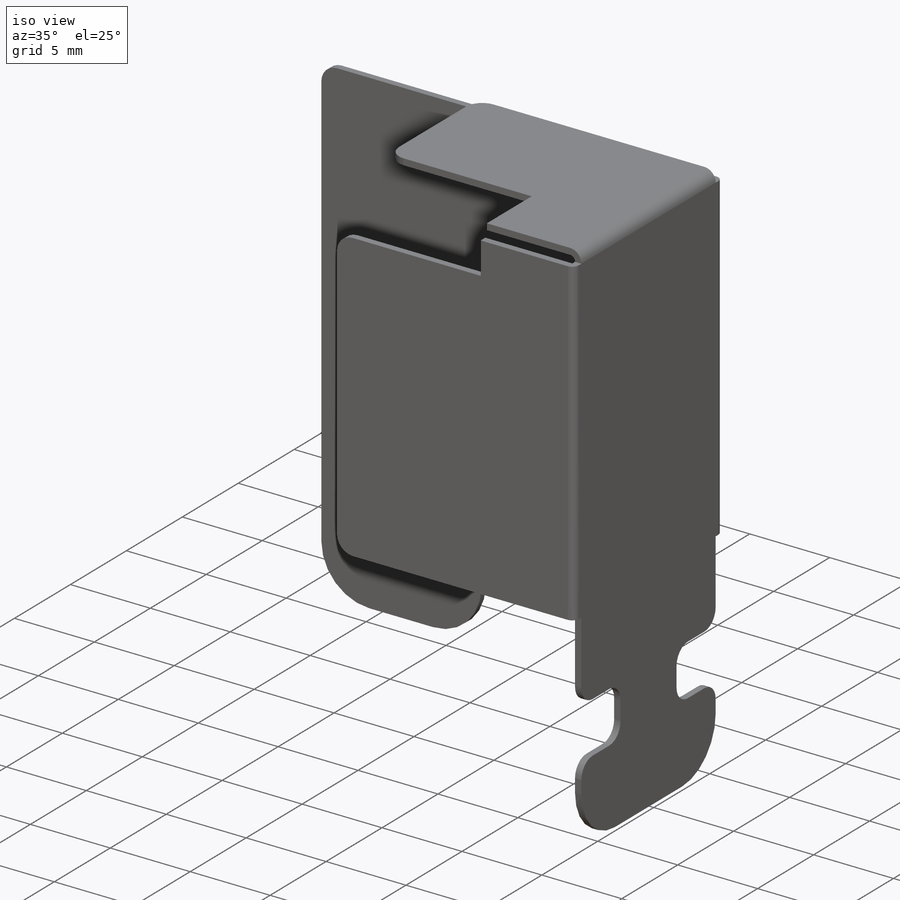
[diagram: iso view]
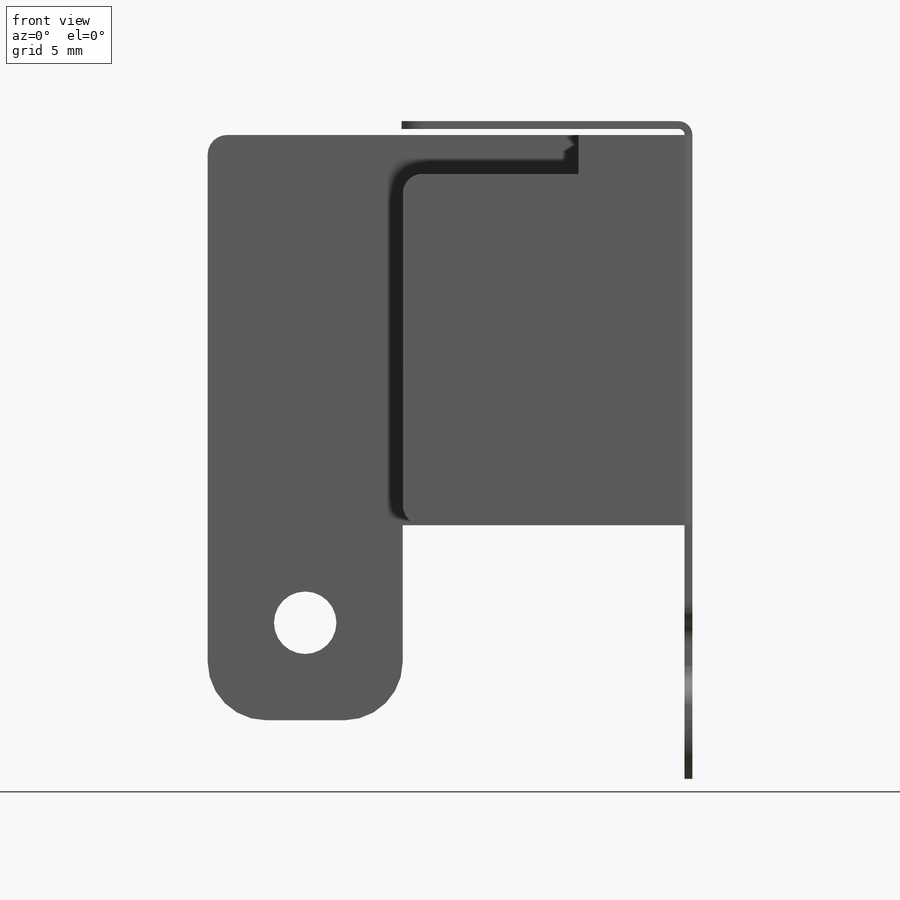
[diagram: front view]
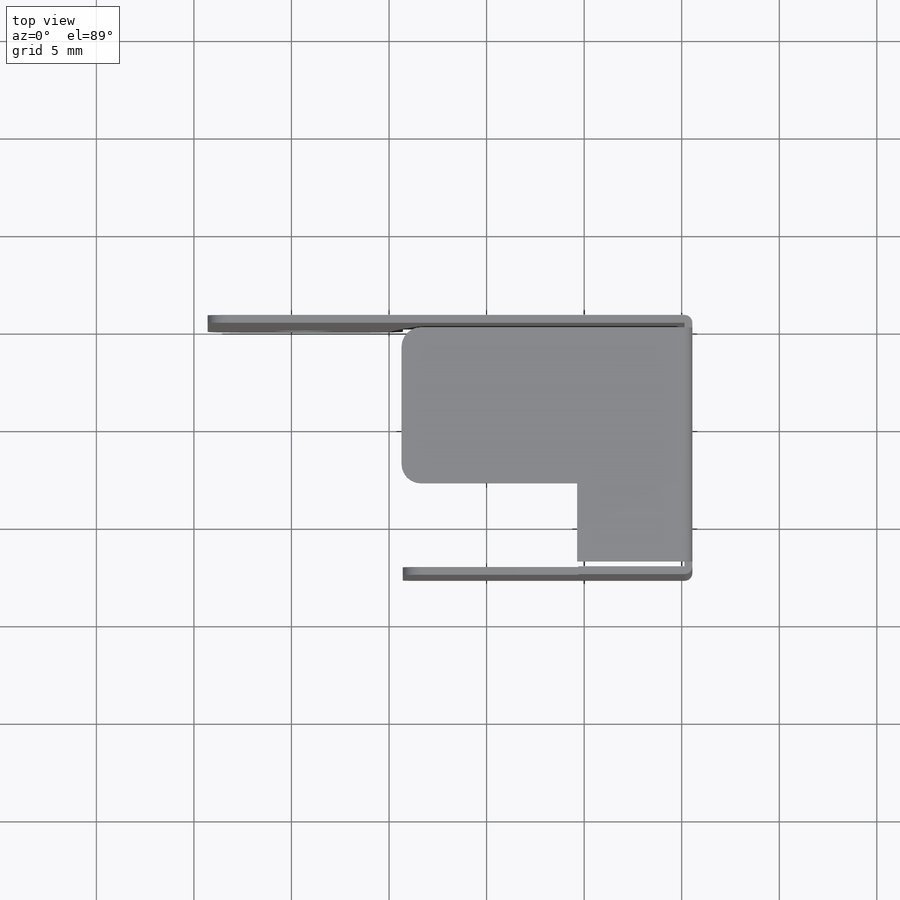
[diagram: top view]
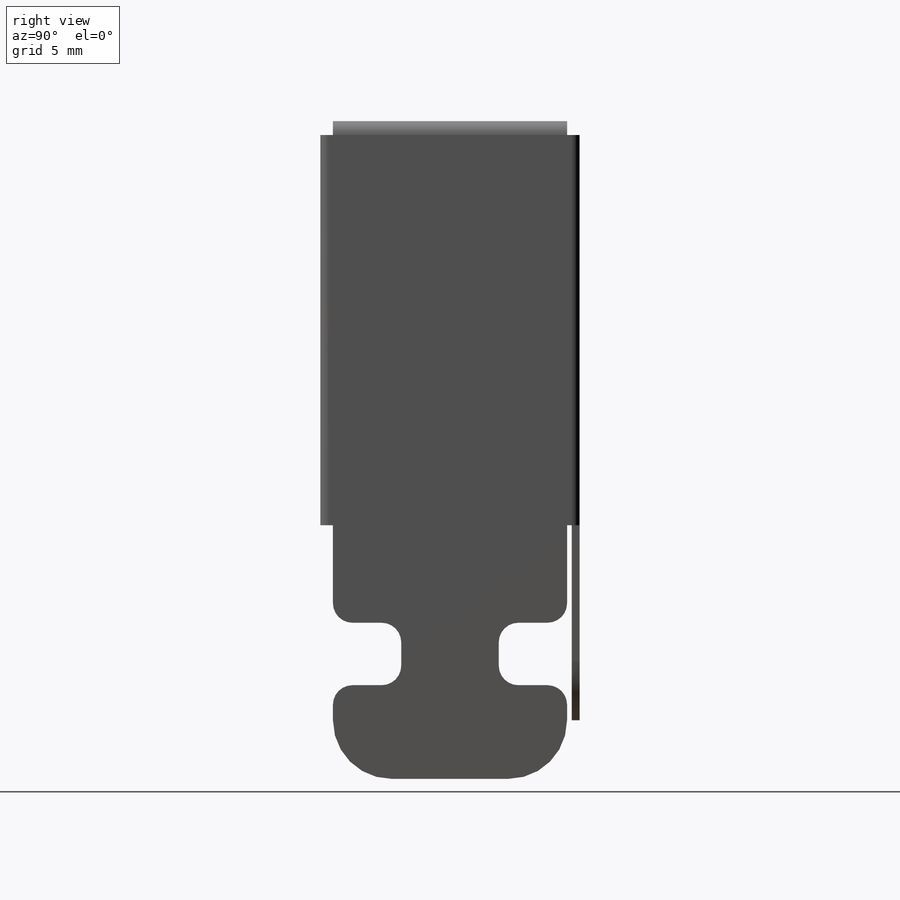
[diagram: right view]
SOLIDWORKS PART (.sldprt)
format: sldprt  version: not decoded by parser v0  size: 400,384 bytes
history: native  units: mm
features: sketch x7, sheet_metal_op x4, fillet x3, material x1 + 3 further entries (+13 scaffold rows collapsed; 3 parser-record rows omitted)
feature tree (34):
  scaffold x13  (default folders/planes/origin — collapsed)
  material  "Material <not specified>"
  sketch  "Sketch1"  dims[c1.D17=3.2mm c1.D1=20.0mm c1.D2=30.0mm c1.D3=12.0mm c1.D4=27.0mm c1.D5=15.0mm c1.D6=25.0mm c1.D7=25.0mm c1.D8=35.0mm c1.D9=5.0mm c1.D10=9.0mm c1.D11=4.0mm c1.D12=2.0mm c1.D13=9.0mm c1.D14=5.0mm c1.D15=5.0mm c1.D16=15.0mm c2.D9=1.5mm c2.D17=2.0mm c2.D18=1.0mm c2.D21=7.0mm c2.D22=3.0mm c2.D23=3.0mm c2.D24=16.0mm c2.D25=10.0mm c2.D7=33.0mm c2.D8=5.0mm c3.D9=3.2mm c3.D14=3.5mm c3.D1=0.7366mm c3.D2=0.5 c3.D3=0.0mm c3.D6=500.0mm]
  sheet_metal_op  "Base-Flange1"
  sketch  "Sketch13"  dims[D1=0.4mm]
  parser-record x3  (decoder bookkeeping rows leaked as tree rows — omitted from the tree; the rows remain in map.json)
  sketch  "Sketch14"  dims[D1=0.4mm Sketched Bend12=0.0]
  "SketchBend13"
  "SketchBend14"
  fillet  "Fillet1"  Radius=3mm
  fillet  "Fillet2"  Radius=1mm
  fillet  "Fillet3"  Radius=1mm
  sketch  "Bend-Lines3"
  sketch  "Bounding-Box3"
  sheet_metal_op  "Sheet-Metal(4)"
  "Flat-Pattern(4)"
  sketch  "Bend-Lines4"
  sketch  "Bounding-Box4"
  sheet_metal_op  "Flatten-<SketchBend13>1"
  sheet_metal_op  "Flatten-<SketchBend14>1"
decode coverage: 6 of 14 modeling features carry decoded parameters; 3 rows unclassified (native names shown)
note: suppression state not decoded; provenance and decode notes live in map.json
